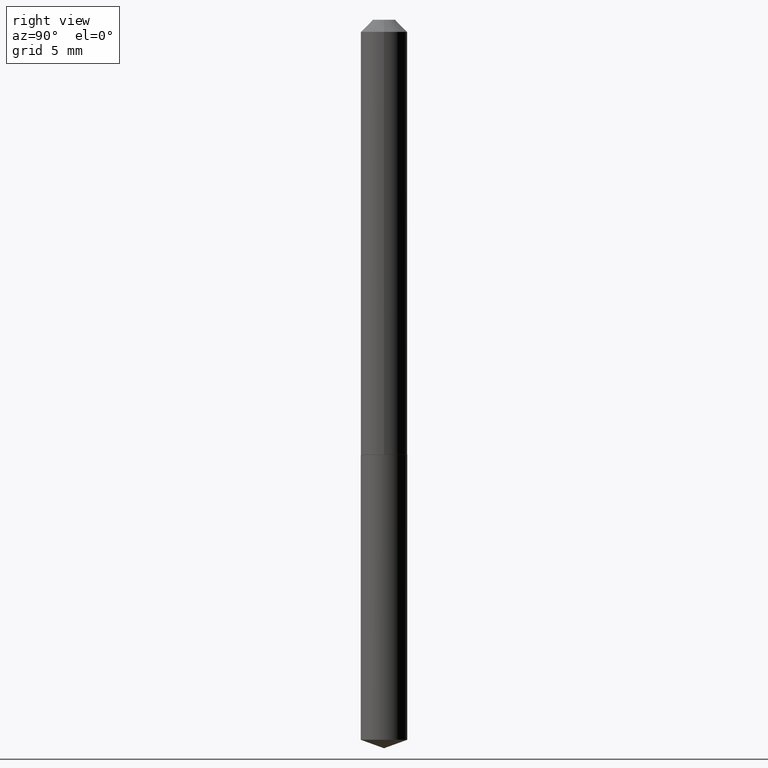
[diagram: clean part render]
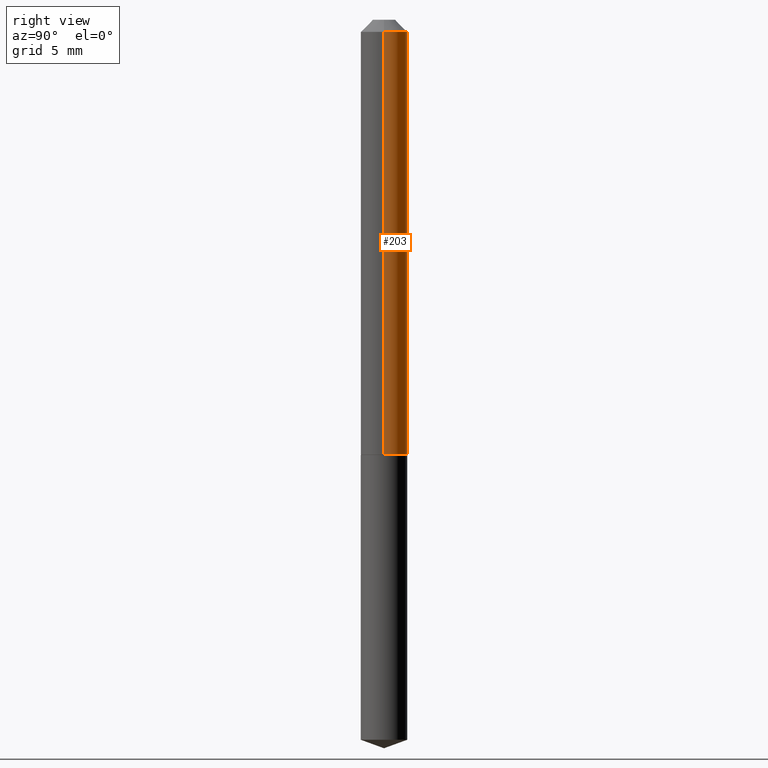
[diagram: same view with one face highlighted and labeled with its STEP entity id]
A machine part, right view. The second image highlights one B-rep face of the part: STEP entity #203.
In plain terms, the highlighted cylindrical surface (edge-blend (fillet) strip) has radius 1.524 mm, axis along (-0, 0, 1).
Its self-contained STEP definition (entity closure, byte-faithful):
#9 = DIRECTION ( 'NONE',  ( -2.445468806185136597E-29, 3.491481338843145583E-15, 1.000000000000000000 ) ) ;
#14 = CARTESIAN_POINT ( 'NONE',  ( 7.642090019328600035E-31, -1.091087918388489897E-16, -0.03125000000000020123 ) ) ;
#19 = VECTOR ( 'NONE', #195, 39.37007874015748143 ) ;
#24 = VERTEX_POINT ( 'NONE', #382 ) ;
#28 = DIRECTION ( 'NONE',  ( -2.445468806185136877E-29, 3.491481338843145188E-15, 1.000000000000000000 ) ) ;
#49 = AXIS2_PLACEMENT_3D ( 'NONE', #14, #113, #284 ) ;
#73 = CARTESIAN_POINT ( 'NONE',  ( -0.06000000000000007411, 4.263256414560606381E-16, -2.951361054152947267E-30 ) ) ;
#90 = CIRCLE ( 'NONE', #352, 0.06000000000000014350 ) ;
#110 = CARTESIAN_POINT ( 'NONE',  ( 0.000000000000000000, 0.000000000000000000, 0.000000000000000000 ) ) ;
#113 = DIRECTION ( 'NONE',  ( -2.445468806185136597E-29, 3.491481338843145583E-15, 1.000000000000000000 ) ) ;
#136 = CARTESIAN_POINT ( 'NONE',  ( -0.06000000000000014350, -3.482387717378840223E-15, -1.119499999999999940 ) ) ;
#140 = EDGE_CURVE ( 'NONE', #24, #296, #217, .T. ) ;
#141 = EDGE_LOOP ( 'NONE', ( #238, #294, #300, #323 ) ) ;
#153 = EDGE_CURVE ( 'NONE', #270, #296, #364, .T. ) ;
#168 = VERTEX_POINT ( 'NONE', #367 ) ;
#189 = EDGE_CURVE ( 'NONE', #168, #270, #90, .T. ) ;
#195 = DIRECTION ( 'NONE',  ( -2.445468806185136877E-29, 3.491481338843145188E-15, 1.000000000000000000 ) ) ;
#196 = AXIS2_PLACEMENT_3D ( 'NONE', #110, #9, #340 ) ;
#202 = DIRECTION ( 'NONE',  ( 1.000000000000000000, -6.982962677686268288E-15, 0.000000000000000000 ) ) ;
#203 = ADVANCED_FACE ( 'NONE', ( #250 ), #287, .T. ) ;
#217 = CIRCLE ( 'NONE', #49, 0.05999999999999999778 ) ;
#218 = VECTOR ( 'NONE', #28, 39.37007874015748143 ) ;
#238 = ORIENTED_EDGE ( 'NONE', *, *, #189, .T. ) ;
#245 = CARTESIAN_POINT ( 'NONE',  ( -0.05999999999999999778, -1.582585433880813825E-15, -0.03125000000000020123 ) ) ;
#250 = FACE_OUTER_BOUND ( 'NONE', #141, .T. ) ;
#270 = VERTEX_POINT ( 'NONE', #136 ) ;
#284 = DIRECTION ( 'NONE',  ( 1.000000000000000000, -6.982962677686267499E-15, 0.000000000000000000 ) ) ;
#287 = CYLINDRICAL_SURFACE ( 'NONE', #196, 0.06000000000000007411 ) ;
#294 = ORIENTED_EDGE ( 'NONE', *, *, #153, .T. ) ;
#296 = VERTEX_POINT ( 'NONE', #245 ) ;
#300 = ORIENTED_EDGE ( 'NONE', *, *, #140, .F. ) ;
#307 = LINE ( 'NONE', #370, #218 ) ;
#320 = EDGE_CURVE ( 'NONE', #168, #24, #307, .T. ) ;
#323 = ORIENTED_EDGE ( 'NONE', *, *, #320, .F. ) ;
#340 = DIRECTION ( 'NONE',  ( 1.000000000000000000, -6.982962677686266711E-15, 4.876176775795936353E-29 ) ) ;
#352 = AXIS2_PLACEMENT_3D ( 'NONE', #369, #360, #202 ) ;
#360 = DIRECTION ( 'NONE',  ( -2.445468806185136597E-29, 3.491481338843145583E-15, 1.000000000000000000 ) ) ;
#364 = LINE ( 'NONE', #73, #19 ) ;
#367 = CARTESIAN_POINT ( 'NONE',  ( 0.06000000000000014350, -4.327691119496078530E-15, -1.119499999999999940 ) ) ;
#369 = CARTESIAN_POINT ( 'NONE',  ( 2.737702328524260097E-29, -3.908713358834901896E-15, -1.119499999999999940 ) ) ;
#370 = CARTESIAN_POINT ( 'NONE',  ( 0.06000000000000007411, -4.189777606611765351E-16, 2.925706065477565259E-30 ) ) ;
#382 = CARTESIAN_POINT ( 'NONE',  ( 0.05999999999999999778, -5.280865525000250441E-16, -0.03125000000000020123 ) ) ;